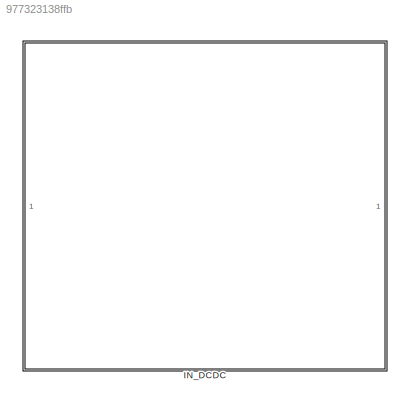
MODEL slx_977323138ffb
KIND library
CONFIG AbsTol = auto
CONFIG EnableMultiTasking = off
CONFIG FixedStep = auto
CONFIG MaxStep = auto
CONFIG MinStep = auto
CONFIG RelTol = 1e-3
CONFIG SampleTimeConstraint = Unconstrained
CONFIG SolverName = VariableStepAuto
CONFIG StartTime = 0.0
CONFIG StopTime = 10.0
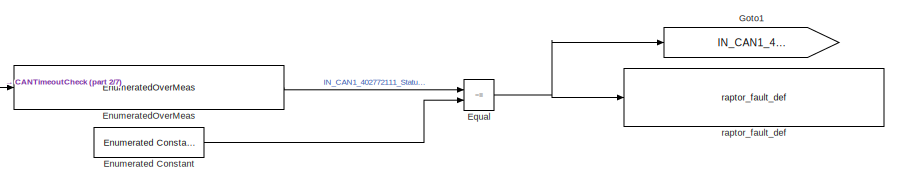
[diagram: IN_DCDC - part 1/7, top right region]
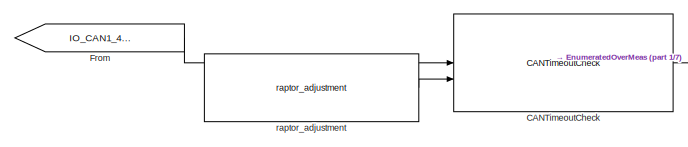
[diagram: IN_DCDC - part 2/7, top left region]
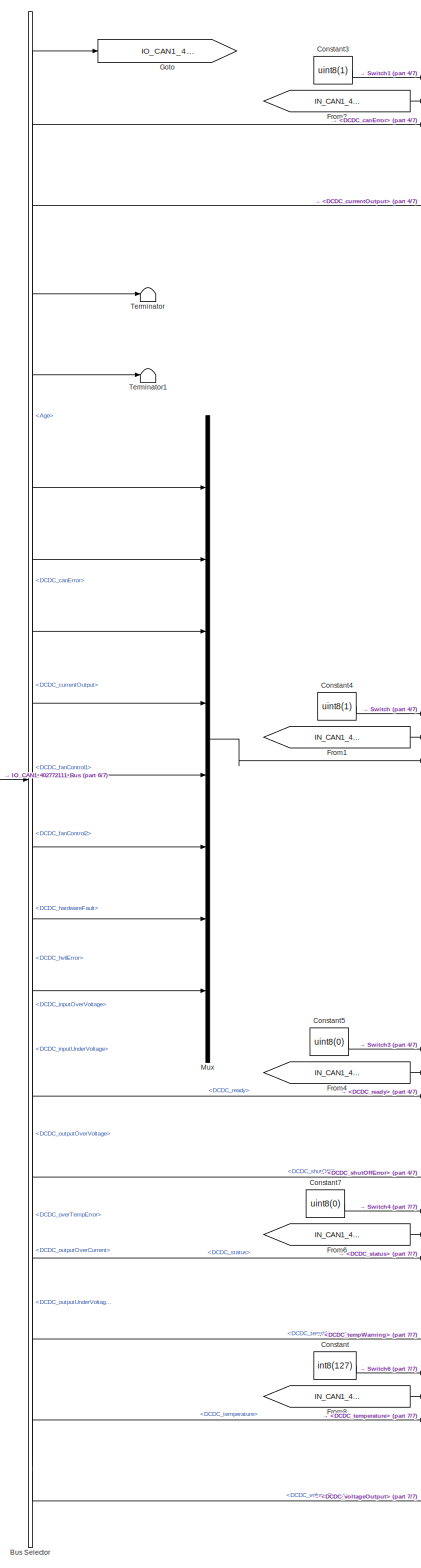
[diagram: IN_DCDC - part 3/7, left side, full height]
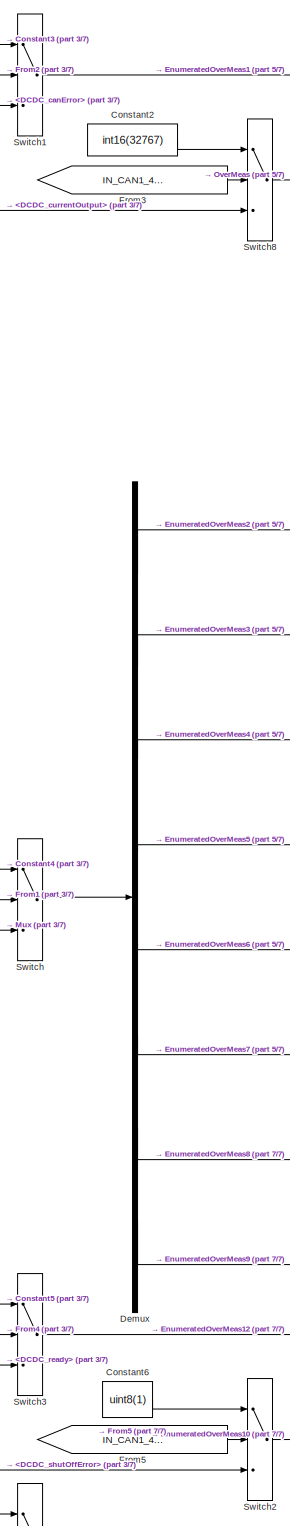
[diagram: IN_DCDC - part 4/7, central region]
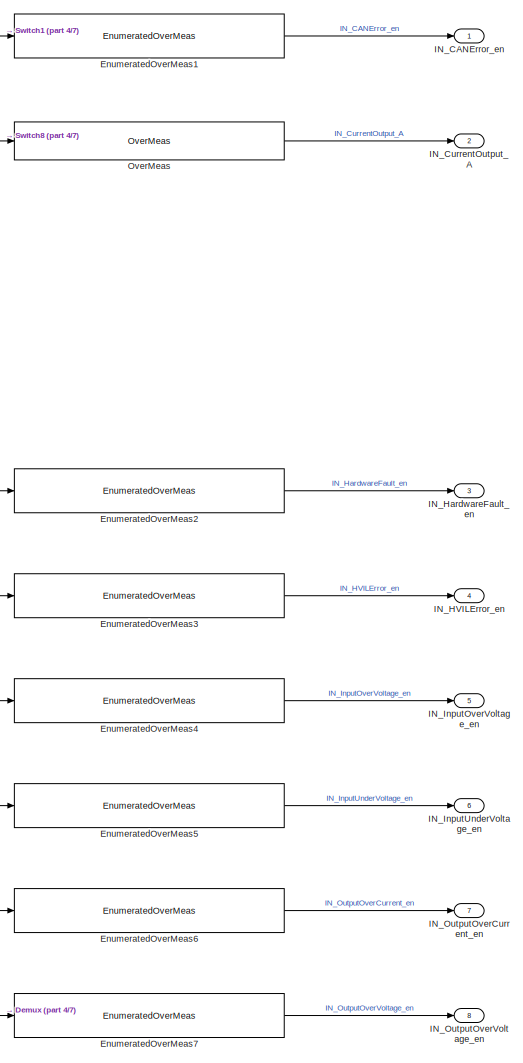
[diagram: IN_DCDC - part 5/7, middle right region]
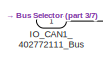
[diagram: IN_DCDC - part 6/7, middle left region]
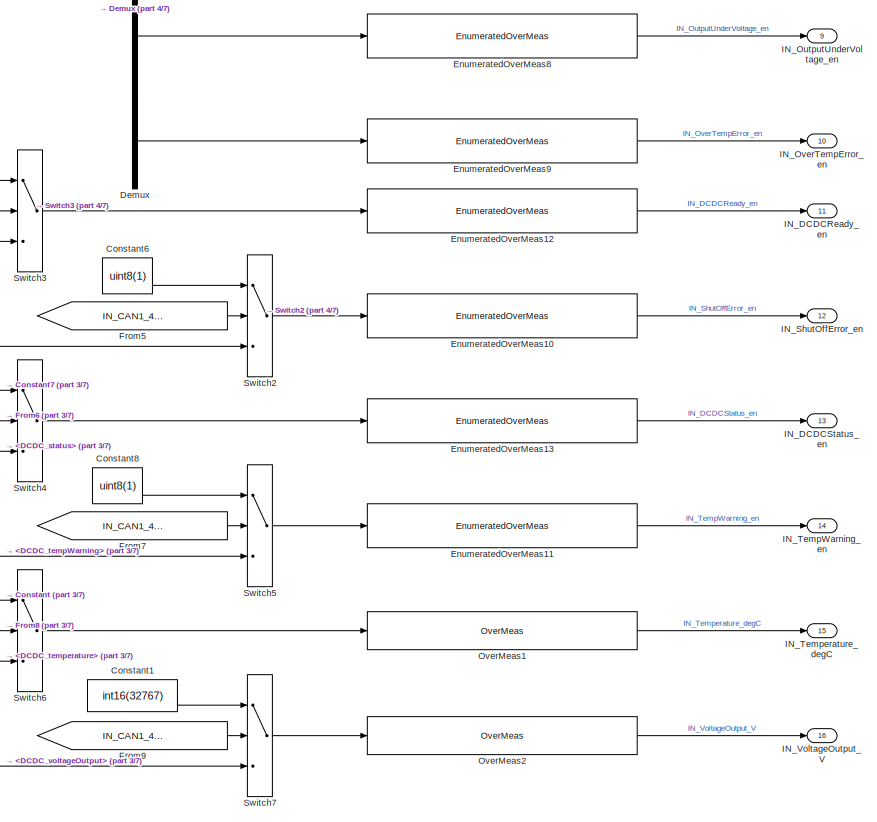
[diagram: IN_DCDC - part 7/7, bottom right region]
BLOCK [SubSystem] IN_DCDC
BLOCK [BusSelector] IN_DCDC/Bus Selector
  OutputSignals = Age,DCDC_canError,DCDC_currentOutput,DCDC_fanControl1,DCDC_fanControl2,DCDC_hardwareFault,DCDC_hvilError,DCDC_inputOverVoltage,DCDC_inputUnderVoltage,DCDC_outputOverCurrent,DCDC_outputOverVoltage,DCDC_outputUnderVoltage,DCDC_overTempError,DCDC_ready,DCDC_shutOffError,DCDC_status,DCDC_tempWarning,DCDC_temperature,DCDC_voltageOutput
BLOCK [Reference] IN_DCDC/CANTimeoutCheck  REF=Utilities/CANTimeoutCheck
  SourceBlock = Utilities/CANTimeoutCheck
BLOCK [Constant] IN_DCDC/Constant
  Value = int8(127)
BLOCK [Constant] IN_DCDC/Constant1
  Value = int16(32767)
BLOCK [Constant] IN_DCDC/Constant2
  Value = int16(32767)
BLOCK [Constant] IN_DCDC/Constant3
  Value = uint8(1)
BLOCK [Constant] IN_DCDC/Constant4
  Value = uint8(1)
BLOCK [Constant] IN_DCDC/Constant5
  Value = uint8(0)
BLOCK [Constant] IN_DCDC/Constant6
  Value = uint8(1)
BLOCK [Constant] IN_DCDC/Constant7
  Value = uint8(0)
BLOCK [Constant] IN_DCDC/Constant8
  Value = uint8(1)
BLOCK [Demux] IN_DCDC/Demux
  Outputs = 8
BLOCK [Reference] IN_DCDC/Enumerated Constant  REF=simulink/Sources/Enumerated
Constant
  SourceBlock = simulink/Sources/Enumerated\nConstant
  SourceType = Enumerated Constant
BLOCK [Reference] IN_DCDC/EnumeratedOverMeas  REF=Utilities/EnumeratedOverMeas
  SourceBlock = Utilities/EnumeratedOverMeas
BLOCK [Reference] IN_DCDC/EnumeratedOverMeas1  REF=Utilities/EnumeratedOverMeas
  SourceBlock = Utilities/EnumeratedOverMeas
BLOCK [Reference] IN_DCDC/EnumeratedOverMeas10  REF=Utilities/EnumeratedOverMeas
  SourceBlock = Utilities/EnumeratedOverMeas
BLOCK [Reference] IN_DCDC/EnumeratedOverMeas11  REF=Utilities/EnumeratedOverMeas
  SourceBlock = Utilities/EnumeratedOverMeas
BLOCK [Reference] IN_DCDC/EnumeratedOverMeas12  REF=Utilities/EnumeratedOverMeas
  SourceBlock = Utilities/EnumeratedOverMeas
BLOCK [Reference] IN_DCDC/EnumeratedOverMeas13  REF=Utilities/EnumeratedOverMeas
  SourceBlock = Utilities/EnumeratedOverMeas
BLOCK [Reference] IN_DCDC/EnumeratedOverMeas2  REF=Utilities/EnumeratedOverMeas
  SourceBlock = Utilities/EnumeratedOverMeas
BLOCK [Reference] IN_DCDC/EnumeratedOverMeas3  REF=Utilities/EnumeratedOverMeas
  SourceBlock = Utilities/EnumeratedOverMeas
BLOCK [Reference] IN_DCDC/EnumeratedOverMeas4  REF=Utilities/EnumeratedOverMeas
  SourceBlock = Utilities/EnumeratedOverMeas
BLOCK [Reference] IN_DCDC/EnumeratedOverMeas5  REF=Utilities/EnumeratedOverMeas
  SourceBlock = Utilities/EnumeratedOverMeas
BLOCK [Reference] IN_DCDC/EnumeratedOverMeas6  REF=Utilities/EnumeratedOverMeas
  SourceBlock = Utilities/EnumeratedOverMeas
BLOCK [Reference] IN_DCDC/EnumeratedOverMeas7  REF=Utilities/EnumeratedOverMeas
  SourceBlock = Utilities/EnumeratedOverMeas
BLOCK [Reference] IN_DCDC/EnumeratedOverMeas8  REF=Utilities/EnumeratedOverMeas
  SourceBlock = Utilities/EnumeratedOverMeas
BLOCK [Reference] IN_DCDC/EnumeratedOverMeas9  REF=Utilities/EnumeratedOverMeas
  SourceBlock = Utilities/EnumeratedOverMeas
BLOCK [RelationalOperator] IN_DCDC/Equal
  InputSameDT = off
  Operator = ~=
  OutDataTypeStr = boolean
  RndMeth = Simplest
BLOCK [From] IN_DCDC/From
  GotoTag = IO_CAN1_402772111_Age
BLOCK [From] IN_DCDC/From1
  GotoTag = IN_CAN1_402772111_Fault
BLOCK [From] IN_DCDC/From2
  GotoTag = IN_CAN1_402772111_Fault
BLOCK [From] IN_DCDC/From3
  GotoTag = IN_CAN1_402772111_Fault
BLOCK [From] IN_DCDC/From4
  GotoTag = IN_CAN1_402772111_Fault
BLOCK [From] IN_DCDC/From5
  GotoTag = IN_CAN1_402772111_Fault
BLOCK [From] IN_DCDC/From6
  GotoTag = IN_CAN1_402772111_Fault
BLOCK [From] IN_DCDC/From7
  GotoTag = IN_CAN1_402772111_Fault
BLOCK [From] IN_DCDC/From8
  GotoTag = IN_CAN1_402772111_Fault
BLOCK [From] IN_DCDC/From9
  GotoTag = IN_CAN1_402772111_Fault
BLOCK [Goto] IN_DCDC/Goto
  GotoTag = IO_CAN1_402772111_Age
BLOCK [Goto] IN_DCDC/Goto1
  GotoTag = IN_CAN1_402772111_Fault
BLOCK [Outport] IN_DCDC/IN_CANError_en
BLOCK [Outport] IN_DCDC/IN_CurrentOutput_A
  Port = 2
BLOCK [Outport] IN_DCDC/IN_DCDCReady_en
  Port = 11
BLOCK [Outport] IN_DCDC/IN_DCDCStatus_en
  Port = 13
BLOCK [Outport] IN_DCDC/IN_HVILError_en
  Port = 4
BLOCK [Outport] IN_DCDC/IN_HardwareFault_en
  Port = 3
BLOCK [Outport] IN_DCDC/IN_InputOverVoltage_en
  Port = 5
BLOCK [Outport] IN_DCDC/IN_InputUnderVoltage_en
  Port = 6
BLOCK [Outport] IN_DCDC/IN_OutputOverCurrent_en
  Port = 7
BLOCK [Outport] IN_DCDC/IN_OutputOverVoltage_en
  Port = 8
BLOCK [Outport] IN_DCDC/IN_OutputUnderVoltage_en
  Port = 9
BLOCK [Outport] IN_DCDC/IN_OverTempError_en
  Port = 10
BLOCK [Outport] IN_DCDC/IN_ShutOffError_en
  Port = 12
BLOCK [Outport] IN_DCDC/IN_TempWarning_en
  Port = 14
BLOCK [Outport] IN_DCDC/IN_Temperature_degC
  Port = 15
BLOCK [Outport] IN_DCDC/IN_VoltageOutput_V
  Port = 16
BLOCK [Inport] IN_DCDC/IO_CAN1_402772111_Bus
BLOCK [Mux] IN_DCDC/Mux
  DisplayOption = bar
  Inputs = 8
BLOCK [Reference] IN_DCDC/OverMeas  REF=Utilities/OverMeas
  SourceBlock = Utilities/OverMeas
BLOCK [Reference] IN_DCDC/OverMeas1  REF=Utilities/OverMeas
  SourceBlock = Utilities/OverMeas
BLOCK [Reference] IN_DCDC/OverMeas2  REF=Utilities/OverMeas
  SourceBlock = Utilities/OverMeas
BLOCK [Switch] IN_DCDC/Switch
  Criteria = u2 ~= 0
  InputSameDT = off
  SaturateOnIntegerOverflow = off
BLOCK [Switch] IN_DCDC/Switch1
  Criteria = u2 ~= 0
  InputSameDT = off
  SaturateOnIntegerOverflow = off
BLOCK [Switch] IN_DCDC/Switch2
  Criteria = u2 ~= 0
  InputSameDT = off
  SaturateOnIntegerOverflow = off
BLOCK [Switch] IN_DCDC/Switch3
  Criteria = u2 ~= 0
  InputSameDT = off
  SaturateOnIntegerOverflow = off
BLOCK [Switch] IN_DCDC/Switch4
  Criteria = u2 ~= 0
  InputSameDT = off
  SaturateOnIntegerOverflow = off
BLOCK [Switch] IN_DCDC/Switch5
  Criteria = u2 ~= 0
  InputSameDT = off
  SaturateOnIntegerOverflow = off
BLOCK [Switch] IN_DCDC/Switch6
  Criteria = u2 ~= 0
  InputSameDT = off
  SaturateOnIntegerOverflow = off
BLOCK [Switch] IN_DCDC/Switch7
  Criteria = u2 ~= 0
  InputSameDT = off
  SaturateOnIntegerOverflow = off
BLOCK [Switch] IN_DCDC/Switch8
  Criteria = u2 ~= 0
  InputSameDT = off
  SaturateOnIntegerOverflow = off
BLOCK [Terminator] IN_DCDC/Terminator
BLOCK [Terminator] IN_DCDC/Terminator1
BLOCK [Reference] IN_DCDC/raptor_adjustment  REF=Raptor_lib/Data Storage/raptor_adjustment
  SourceBlock = Raptor_lib/Data Storage/raptor_adjustment
  SourceProductName = Raptor
  SourceType = Adjustment
BLOCK [Reference] IN_DCDC/raptor_fault_def  REF=Raptor_lib/Faults/raptor_fault_def
  SourceBlock = Raptor_lib/Faults/raptor_fault_def
  SourceProductName = Raptor
  SourceType = Fault Definition
LINE IN_DCDC/Bus Selector:1 -> IN_DCDC/Goto:1
LINE IN_DCDC/Bus Selector:10 -> IN_DCDC/Mux:5
LINE IN_DCDC/Bus Selector:11 -> IN_DCDC/Mux:6
LINE IN_DCDC/Bus Selector:12 -> IN_DCDC/Mux:7
LINE IN_DCDC/Bus Selector:13 -> IN_DCDC/Mux:8
LINE IN_DCDC/Bus Selector:14 -> IN_DCDC/Switch3:3
LINE IN_DCDC/Bus Selector:15 -> IN_DCDC/Switch2:3
LINE IN_DCDC/Bus Selector:16 -> IN_DCDC/Switch4:3
LINE IN_DCDC/Bus Selector:17 -> IN_DCDC/Switch5:3
LINE IN_DCDC/Bus Selector:18 -> IN_DCDC/Switch6:3
LINE IN_DCDC/Bus Selector:19 -> IN_DCDC/Switch7:3
LINE IN_DCDC/Bus Selector:2 -> IN_DCDC/Switch1:3
LINE IN_DCDC/Bus Selector:3 -> IN_DCDC/Switch8:3
LINE IN_DCDC/Bus Selector:4 -> IN_DCDC/Terminator:1
LINE IN_DCDC/Bus Selector:5 -> IN_DCDC/Terminator1:1
LINE IN_DCDC/Bus Selector:6 -> IN_DCDC/Mux:1
LINE IN_DCDC/Bus Selector:7 -> IN_DCDC/Mux:2
LINE IN_DCDC/Bus Selector:8 -> IN_DCDC/Mux:3
LINE IN_DCDC/Bus Selector:9 -> IN_DCDC/Mux:4
LINE IN_DCDC/CANTimeoutCheck:1 -> IN_DCDC/EnumeratedOverMeas:1
LINE IN_DCDC/Constant1:1 -> IN_DCDC/Switch7:1
LINE IN_DCDC/Constant2:1 -> IN_DCDC/Switch8:1
LINE IN_DCDC/Constant3:1 -> IN_DCDC/Switch1:1
LINE IN_DCDC/Constant4:1 -> IN_DCDC/Switch:1
LINE IN_DCDC/Constant5:1 -> IN_DCDC/Switch3:1
LINE IN_DCDC/Constant6:1 -> IN_DCDC/Switch2:1
LINE IN_DCDC/Constant7:1 -> IN_DCDC/Switch4:1
LINE IN_DCDC/Constant8:1 -> IN_DCDC/Switch5:1
LINE IN_DCDC/Constant:1 -> IN_DCDC/Switch6:1
LINE IN_DCDC/Demux:1 -> IN_DCDC/EnumeratedOverMeas2:1
LINE IN_DCDC/Demux:2 -> IN_DCDC/EnumeratedOverMeas3:1
LINE IN_DCDC/Demux:3 -> IN_DCDC/EnumeratedOverMeas4:1
LINE IN_DCDC/Demux:4 -> IN_DCDC/EnumeratedOverMeas5:1
LINE IN_DCDC/Demux:5 -> IN_DCDC/EnumeratedOverMeas6:1
LINE IN_DCDC/Demux:6 -> IN_DCDC/EnumeratedOverMeas7:1
LINE IN_DCDC/Demux:7 -> IN_DCDC/EnumeratedOverMeas8:1
LINE IN_DCDC/Demux:8 -> IN_DCDC/EnumeratedOverMeas9:1
LINE IN_DCDC/Enumerated Constant:1 -> IN_DCDC/Equal:2
LINE IN_DCDC/EnumeratedOverMeas10:1 -> IN_DCDC/IN_ShutOffError_en:1
LINE IN_DCDC/EnumeratedOverMeas11:1 -> IN_DCDC/IN_TempWarning_en:1
LINE IN_DCDC/EnumeratedOverMeas12:1 -> IN_DCDC/IN_DCDCReady_en:1
LINE IN_DCDC/EnumeratedOverMeas13:1 -> IN_DCDC/IN_DCDCStatus_en:1
LINE IN_DCDC/EnumeratedOverMeas1:1 -> IN_DCDC/IN_CANError_en:1
LINE IN_DCDC/EnumeratedOverMeas2:1 -> IN_DCDC/IN_HardwareFault_en:1
LINE IN_DCDC/EnumeratedOverMeas3:1 -> IN_DCDC/IN_HVILError_en:1
LINE IN_DCDC/EnumeratedOverMeas4:1 -> IN_DCDC/IN_InputOverVoltage_en:1
LINE IN_DCDC/EnumeratedOverMeas5:1 -> IN_DCDC/IN_InputUnderVoltage_en:1
LINE IN_DCDC/EnumeratedOverMeas6:1 -> IN_DCDC/IN_OutputOverCurrent_en:1
LINE IN_DCDC/EnumeratedOverMeas7:1 -> IN_DCDC/IN_OutputOverVoltage_en:1
LINE IN_DCDC/EnumeratedOverMeas8:1 -> IN_DCDC/IN_OutputUnderVoltage_en:1
LINE IN_DCDC/EnumeratedOverMeas9:1 -> IN_DCDC/IN_OverTempError_en:1
LINE IN_DCDC/EnumeratedOverMeas:1 -> IN_DCDC/Equal:1
NET IN_DCDC/Equal:1 -> IN_DCDC/Goto1:1, IN_DCDC/raptor_fault_def:1
LINE IN_DCDC/From1:1 -> IN_DCDC/Switch:2
LINE IN_DCDC/From2:1 -> IN_DCDC/Switch1:2
LINE IN_DCDC/From3:1 -> IN_DCDC/Switch8:2
LINE IN_DCDC/From4:1 -> IN_DCDC/Switch3:2
LINE IN_DCDC/From5:1 -> IN_DCDC/Switch2:2
LINE IN_DCDC/From6:1 -> IN_DCDC/Switch4:2
LINE IN_DCDC/From7:1 -> IN_DCDC/Switch5:2
LINE IN_DCDC/From8:1 -> IN_DCDC/Switch6:2
LINE IN_DCDC/From9:1 -> IN_DCDC/Switch7:2
LINE IN_DCDC/From:1 -> IN_DCDC/CANTimeoutCheck:1
LINE IN_DCDC/IO_CAN1_402772111_Bus:1 -> IN_DCDC/Bus Selector:1
LINE IN_DCDC/Mux:1 -> IN_DCDC/Switch:3
LINE IN_DCDC/OverMeas1:1 -> IN_DCDC/IN_Temperature_degC:1
LINE IN_DCDC/OverMeas2:1 -> IN_DCDC/IN_VoltageOutput_V:1
LINE IN_DCDC/OverMeas:1 -> IN_DCDC/IN_CurrentOutput_A:1
LINE IN_DCDC/Switch1:1 -> IN_DCDC/EnumeratedOverMeas1:1
LINE IN_DCDC/Switch2:1 -> IN_DCDC/EnumeratedOverMeas10:1
LINE IN_DCDC/Switch3:1 -> IN_DCDC/EnumeratedOverMeas12:1
LINE IN_DCDC/Switch4:1 -> IN_DCDC/EnumeratedOverMeas13:1
LINE IN_DCDC/Switch5:1 -> IN_DCDC/EnumeratedOverMeas11:1
LINE IN_DCDC/Switch6:1 -> IN_DCDC/OverMeas1:1
LINE IN_DCDC/Switch7:1 -> IN_DCDC/OverMeas2:1
LINE IN_DCDC/Switch8:1 -> IN_DCDC/OverMeas:1
LINE IN_DCDC/Switch:1 -> IN_DCDC/Demux:1
LINE IN_DCDC/raptor_adjustment:1 -> IN_DCDC/CANTimeoutCheck:2
note: NET lines group one-source signal fan-out (src -> all destinations, sorted); 1:1 wires keep LINE
